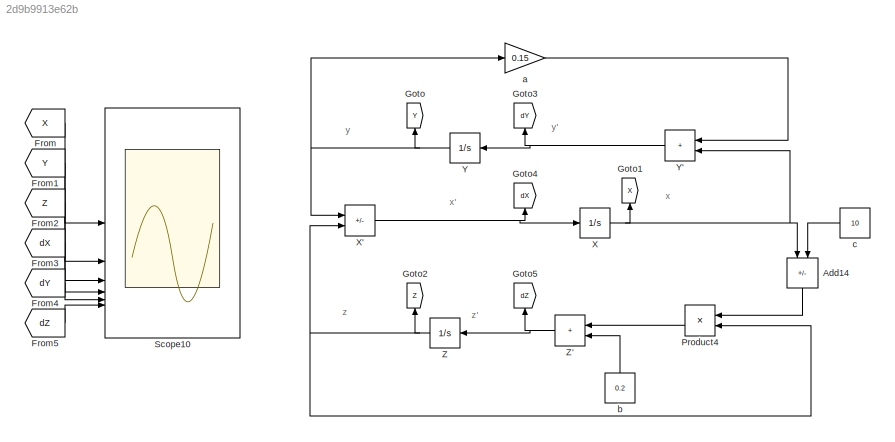
MODEL slx_2d9b9913e62b
KIND model
CONFIG AbsTol = auto
CONFIG EnableMultiTasking = off
CONFIG FixedStep = 1e-3
CONFIG MaxStep = 1e-4
CONFIG MinStep = auto
CONFIG RelTol = 1e-3
CONFIG SampleTimeConstraint = Unconstrained
CONFIG SolverName = VariableStepAuto
CONFIG StartTime = 0.0
CONFIG StopTime = 30
BLOCK [Sum] Add14
  IconShape = rectangular
  Inputs = +-
  NameLocation = left
BLOCK [From] From
  GotoTag = X
BLOCK [From] From1
  GotoTag = Y
BLOCK [From] From2
  GotoTag = Z
BLOCK [From] From3
  GotoTag = dX
BLOCK [From] From4
  GotoTag = dY
BLOCK [From] From5
  GotoTag = dZ
BLOCK [Goto] Goto
  GotoTag = Y
  NameLocation = right
BLOCK [Goto] Goto1
  GotoTag = X
  NameLocation = right
BLOCK [Goto] Goto2
  GotoTag = Z
  NameLocation = right
BLOCK [Goto] Goto3
  GotoTag = dY
  NameLocation = right
BLOCK [Goto] Goto4
  GotoTag = dX
  NameLocation = right
BLOCK [Goto] Goto5
  GotoTag = dZ
  NameLocation = right
BLOCK [Product] Product4
  NameLocation = top
BLOCK [Scope] Scope10
  Floating = off
  NumInputPorts = 6
  ScopeSpecificationString = Simulink.scopes.TimeScopeBlockCfg('CurrentConfiguration', extmgr.ConfigurationSet(extmgr.Configuration('Core','General UI',true),extmgr.Configuration('Core','Source UI',true),extmgr.Configuration('Sources','WiredSimulink',true,'DataLoggingVariableName','ScopeData5'),extmgr.Configuration('Visuals','Time Domain',true,'SerializedDisplays',{struct('MinYLimReal','-0.18128','MaxYLimReal','0.225','YLabel...<+4957ch>
BLOCK [Integrator] X
BLOCK [Sum] X'
  IconShape = rectangular
  Inputs = --
BLOCK [Integrator] Y
  NameLocation = top
BLOCK [Sum] Y'
  IconShape = rectangular
  NameLocation = top
BLOCK [Integrator] Z
  NameLocation = top
BLOCK [Sum] Z'
  IconShape = rectangular
  NameLocation = top
BLOCK [Gain] a
  Gain = 0.15
BLOCK [Constant] b
  NameLocation = right
  Value = 0.2
BLOCK [Constant] c
  NameLocation = top
  Value = 10
ANNOTATION (root): x
ANNOTATION (root): x'
ANNOTATION (root): y
ANNOTATION (root): y'
ANNOTATION (root): z
ANNOTATION (root): z'
LINE Add14:1 -> Product4:1
LINE From1:1 -> Scope10:2
LINE From2:1 -> Scope10:3
LINE From3:1 -> Scope10:4
LINE From4:1 -> Scope10:5
LINE From5:1 -> Scope10:6
LINE From:1 -> Scope10:1
LINE Product4:1 -> Z':1
NET X':1 -> Goto4:1, X:1
NET X:1 -> Add14:1, Goto1:1, Y':2
NET Y':1 -> Goto3:1, Y:1
NET Y:1 -> Goto:1, X':1, a:1
NET Z':1 -> Goto5:1, Z:1
NET Z:1 -> Goto2:1, Product4:2, X':2
LINE a:1 -> Y':1
LINE b:1 -> Z':2
LINE c:1 -> Add14:2
note: NET lines group one-source signal fan-out (src -> all destinations, sorted); 1:1 wires keep LINE
